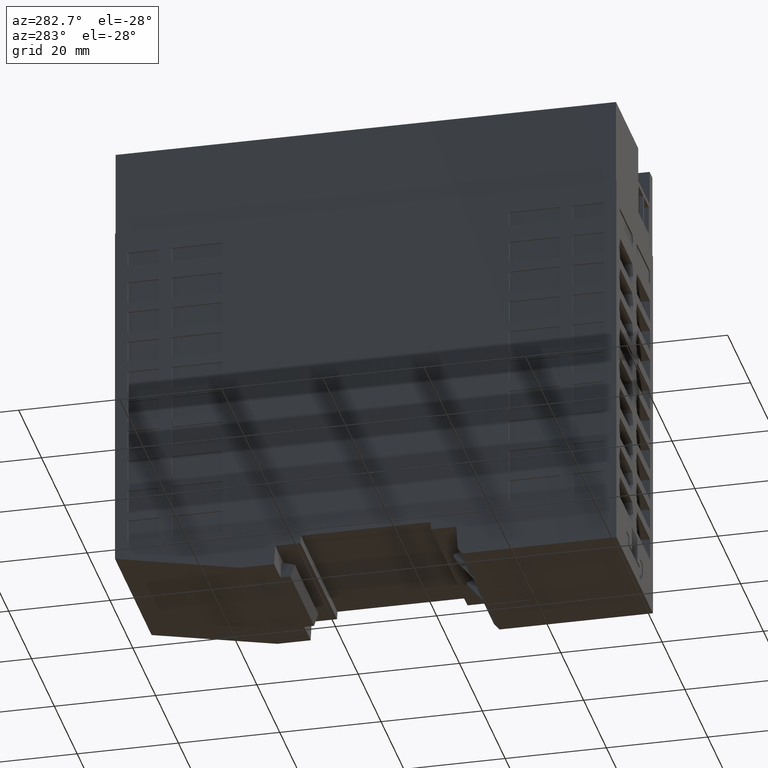
[diagram: clean part render]
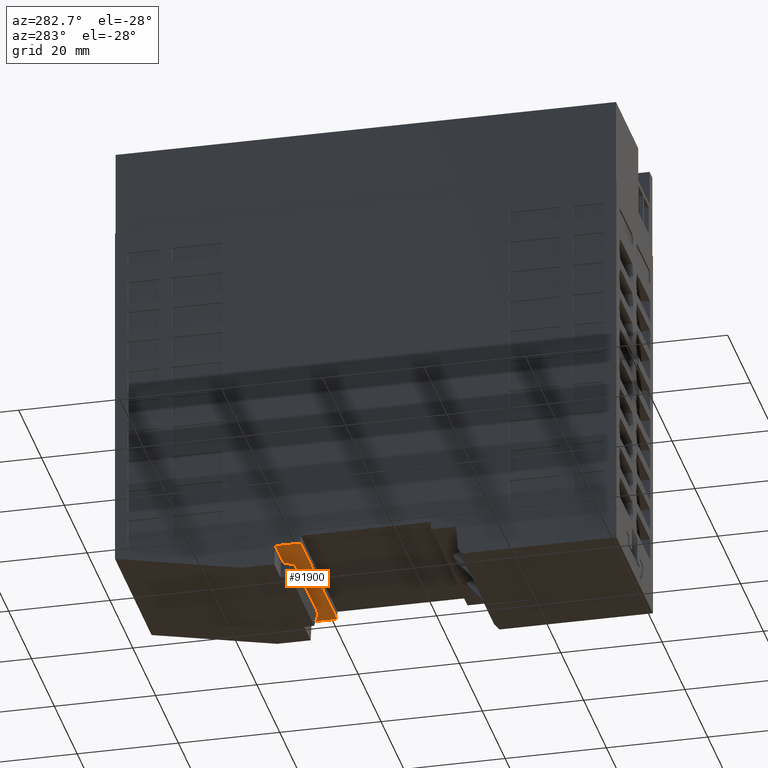
[diagram: same view with one face highlighted and labeled with its STEP entity id]
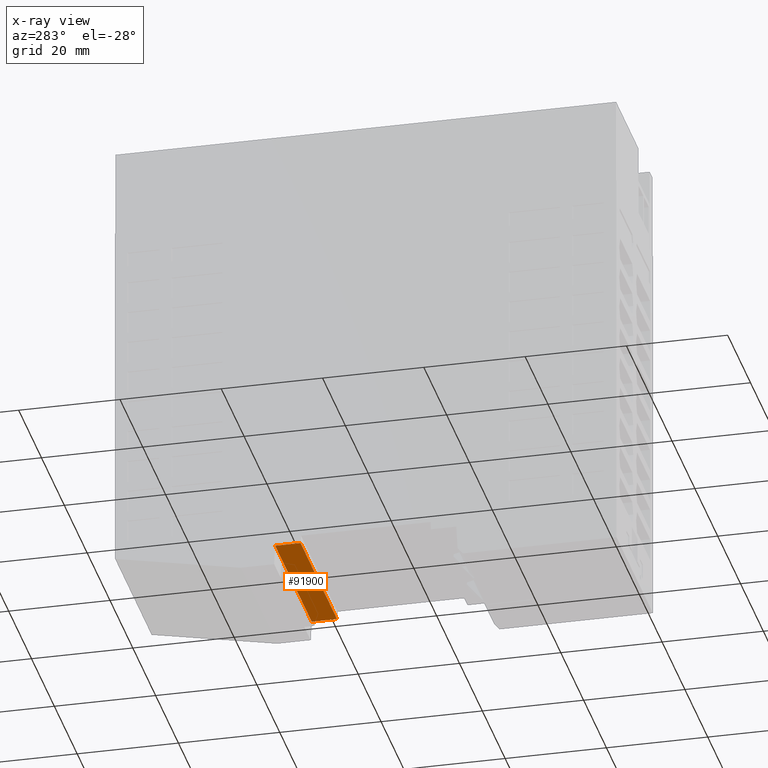
[diagram: x-ray of the same camera — body ghosted, the highlighted face saturated]
A machine part, auxiliary view. The second image highlights one B-rep face of the part: STEP entity #91900.
The next image is the same camera in x-ray: the body ghosted, the highlighted face saturated — about 0% of this face is hidden behind the body in this view.
In plain terms, the highlighted planar face has unit normal (-0, 0, 1).
Its self-contained STEP definition (entity closure, byte-faithful):
#360=CARTESIAN_POINT('',(-16.,0.,17.8838524468557));
#370=VERTEX_POINT('',#360);
#400=CARTESIAN_POINT('',(-16.,0.,17.74150776185));
#410=DIRECTION('',(0.,0.,-1.));
#420=VECTOR('',#410,1.);
#430=LINE('',#400,#420);
#440=CARTESIAN_POINT('',(-16.,0.,12.8838524468493));
#450=VERTEX_POINT('',#440);
#460=EDGE_CURVE('',#370,#450,#430,.T.);
#23500=CARTESIAN_POINT('',(16.,0.,12.8838524468493));
#23510=VERTEX_POINT('',#23500);
#23540=CARTESIAN_POINT('',(16.,0.,0.));
#23550=DIRECTION('',(0.,0.,-1.));
#23560=VECTOR('',#23550,1.);
#23570=LINE('',#23540,#23560);
#23580=CARTESIAN_POINT('',(16.,0.,17.8838524468557));
#23590=VERTEX_POINT('',#23580);
#23600=EDGE_CURVE('',#23590,#23510,#23570,.T.);
#91510=CARTESIAN_POINT('',(0.,0.,12.8838524468493));
#91520=DIRECTION('',(1.,0.,0.));
#91530=VECTOR('',#91520,1.);
#91540=LINE('',#91510,#91530);
#91550=EDGE_CURVE('',#450,#23510,#91540,.T.);
#91740=CARTESIAN_POINT('',(-11.25,0.,17.8838524468557));
#91750=DIRECTION('',(0.,1.,0.));
#91760=DIRECTION('',(0.,0.,1.));
#91770=AXIS2_PLACEMENT_3D('',#91740,#91750,#91760);
#91780=PLANE('',#91770);
#91790=ORIENTED_EDGE('',*,*,#460,.T.);
#91800=CARTESIAN_POINT('',(0.,0.,17.8838524468557));
#91810=DIRECTION('',(1.,0.,0.));
#91820=VECTOR('',#91810,1.);
#91830=LINE('',#91800,#91820);
#91840=EDGE_CURVE('',#370,#23590,#91830,.T.);
#91850=ORIENTED_EDGE('',*,*,#91840,.F.);
#91860=ORIENTED_EDGE('',*,*,#23600,.F.);
#91870=ORIENTED_EDGE('',*,*,#91550,.T.);
#91880=EDGE_LOOP('',(#91870,#91860,#91850,#91790));
#91890=FACE_OUTER_BOUND('',#91880,.T.);
#91900=ADVANCED_FACE('',(#91890),#91780,.F.);